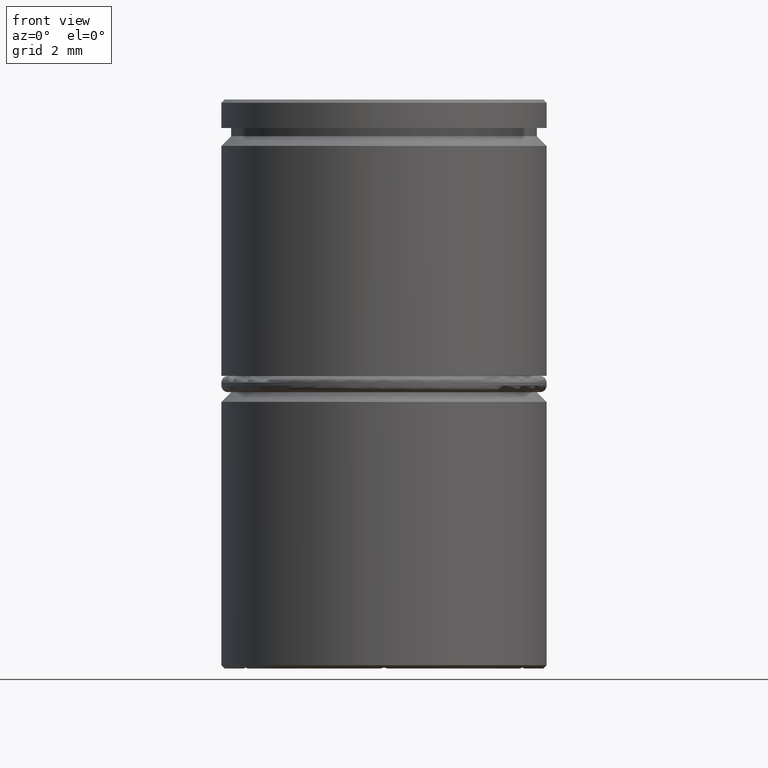
[diagram: clean part render]
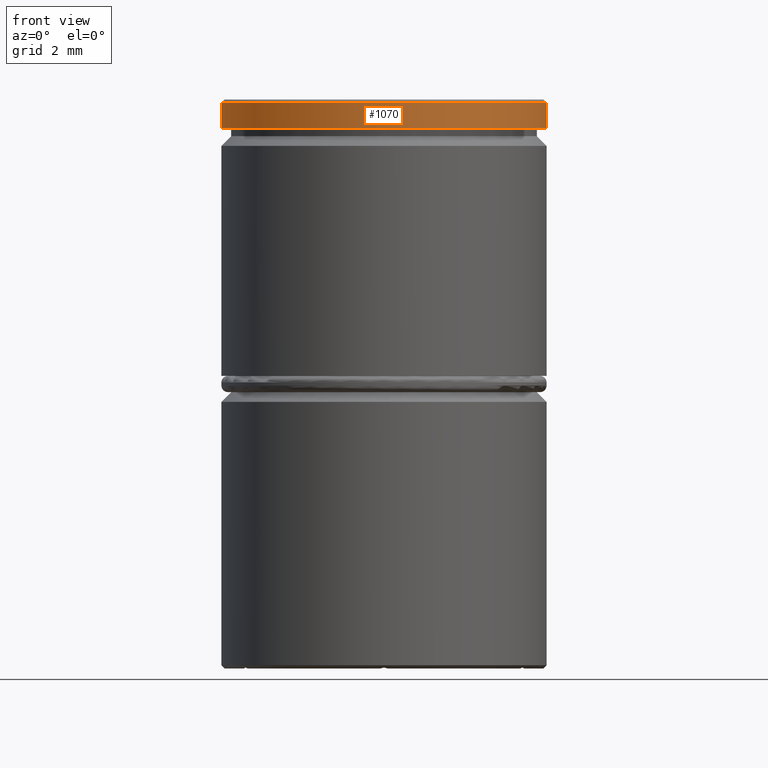
[diagram: same view with one face highlighted and labeled with its STEP entity id]
A machine part, front view. The second image highlights one B-rep face of the part: STEP entity #1070.
In plain terms, the highlighted cylindrical surface (partial cylindrical patch) has radius 5 mm, axis along (-0, -0, 1).
Its self-contained STEP definition (entity closure, byte-faithful):
#26 = CARTESIAN_POINT ( 'NONE',  ( -5.000000000000000000, 6.123233995736766282E-16, -0.8749999999999998890 ) ) ;
#46 = DIRECTION ( 'NONE',  ( -0.000000000000000000, -0.000000000000000000, 1.000000000000000000 ) ) ;
#58 = CARTESIAN_POINT ( 'NONE',  ( 5.000000000000000000, 0.000000000000000000, -0.09999999999999505118 ) ) ;
#125 = CARTESIAN_POINT ( 'NONE',  ( 0.000000000000000000, 0.000000000000000000, 0.000000000000000000 ) ) ;
#134 = CYLINDRICAL_SURFACE ( 'NONE', #1192, 5.000000000000000000 ) ;
#159 = CIRCLE ( 'NONE', #699, 5.000000000000000000 ) ;
#192 = ORIENTED_EDGE ( 'NONE', *, *, #1017, .F. ) ;
#193 = CARTESIAN_POINT ( 'NONE',  ( 0.000000000000000000, 0.000000000000000000, -0.8749999999999998890 ) ) ;
#199 = ORIENTED_EDGE ( 'NONE', *, *, #581, .T. ) ;
#216 = CIRCLE ( 'NONE', #480, 5.000000000000000000 ) ;
#235 = LINE ( 'NONE', #990, #478 ) ;
#296 = DIRECTION ( 'NONE',  ( 1.000000000000000000, 0.000000000000000000, 0.000000000000000000 ) ) ;
#302 = VECTOR ( 'NONE', #634, 1000.000000000000000 ) ;
#317 = LINE ( 'NONE', #1161, #302 ) ;
#349 = CARTESIAN_POINT ( 'NONE',  ( 0.000000000000000000, 0.000000000000000000, -0.09999999999999505118 ) ) ;
#418 = VERTEX_POINT ( 'NONE', #911 ) ;
#430 = DIRECTION ( 'NONE',  ( 1.000000000000000000, 0.000000000000000000, 0.000000000000000000 ) ) ;
#470 = FACE_OUTER_BOUND ( 'NONE', #1037, .T. ) ;
#478 = VECTOR ( 'NONE', #664, 1000.000000000000000 ) ;
#480 = AXIS2_PLACEMENT_3D ( 'NONE', #193, #1042, #296 ) ;
#581 = EDGE_CURVE ( 'NONE', #1212, #418, #159, .T. ) ;
#634 = DIRECTION ( 'NONE',  ( -0.000000000000000000, -0.000000000000000000, 1.000000000000000000 ) ) ;
#664 = DIRECTION ( 'NONE',  ( -0.000000000000000000, -0.000000000000000000, 1.000000000000000000 ) ) ;
#694 = CARTESIAN_POINT ( 'NONE',  ( 5.000000000000000000, 0.000000000000000000, -0.8749999999999998890 ) ) ;
#696 = VERTEX_POINT ( 'NONE', #26 ) ;
#699 = AXIS2_PLACEMENT_3D ( 'NONE', #349, #872, #430 ) ;
#764 = ORIENTED_EDGE ( 'NONE', *, *, #1278, .T. ) ;
#848 = ORIENTED_EDGE ( 'NONE', *, *, #952, .T. ) ;
#872 = DIRECTION ( 'NONE',  ( 0.000000000000000000, 0.000000000000000000, -1.000000000000000000 ) ) ;
#911 = CARTESIAN_POINT ( 'NONE',  ( -5.000000000000000000, 6.123233995736766282E-16, -0.09999999999999505118 ) ) ;
#952 = EDGE_CURVE ( 'NONE', #1247, #1212, #317, .T. ) ;
#990 = CARTESIAN_POINT ( 'NONE',  ( -5.000000000000000000, 6.123233995736766282E-16, 0.000000000000000000 ) ) ;
#1017 = EDGE_CURVE ( 'NONE', #696, #418, #235, .T. ) ;
#1037 = EDGE_LOOP ( 'NONE', ( #192, #764, #848, #199 ) ) ;
#1042 = DIRECTION ( 'NONE',  ( -0.000000000000000000, -0.000000000000000000, 1.000000000000000000 ) ) ;
#1070 = ADVANCED_FACE ( 'NONE', ( #470 ), #134, .T. ) ;
#1081 = DIRECTION ( 'NONE',  ( 1.000000000000000000, 0.000000000000000000, 0.000000000000000000 ) ) ;
#1161 = CARTESIAN_POINT ( 'NONE',  ( 5.000000000000000000, 0.000000000000000000, 0.000000000000000000 ) ) ;
#1192 = AXIS2_PLACEMENT_3D ( 'NONE', #125, #46, #1081 ) ;
#1212 = VERTEX_POINT ( 'NONE', #58 ) ;
#1247 = VERTEX_POINT ( 'NONE', #694 ) ;
#1278 = EDGE_CURVE ( 'NONE', #696, #1247, #216, .T. ) ;